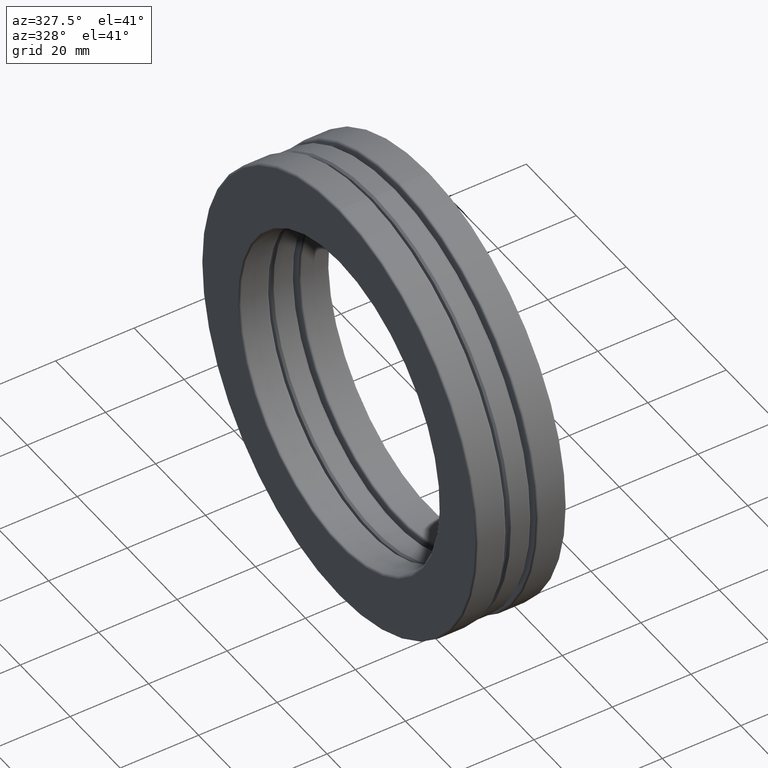
[diagram: clean part render]
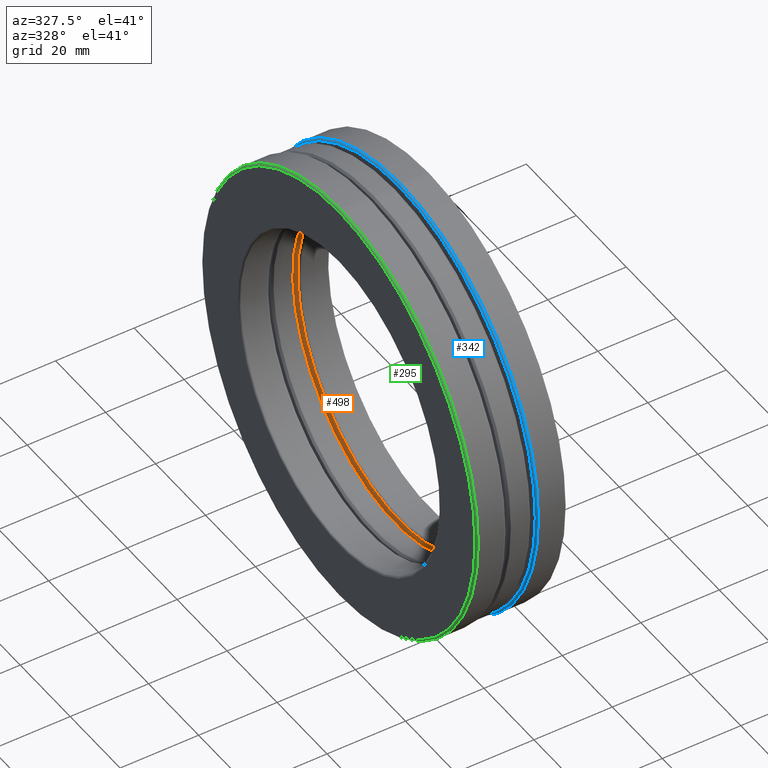
[diagram: same view with three faces highlighted in distinct colors, each labeled with its STEP entity id]
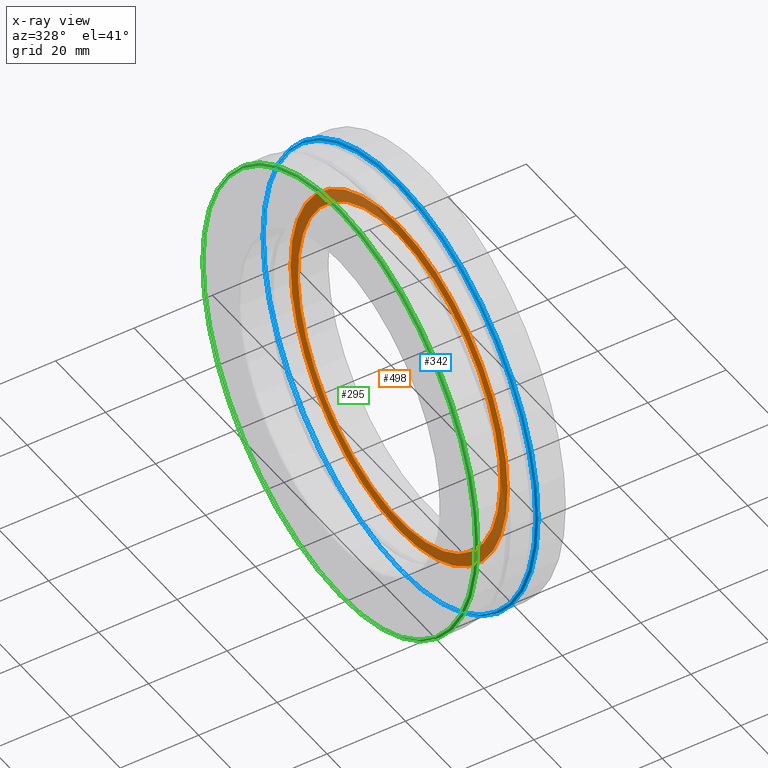
[diagram: x-ray of the same camera — body ghosted, the three highlighted faces saturated]
A machine part, auxiliary view with three faces highlighted in distinct colors.
The next image is the same camera in x-ray (body ghosted, the three faces saturated) — at least one of them is partly hidden behind the body in this view.
Their STEP definitions:

[orange] entity #498 — the highlighted planar face has unit normal (1, 0, 0).
#17 = DIRECTION ( 'NONE',  ( 0.0000000000000000000, 0.0000000000000000000, -1.000000000000000000 ) ) ;
#82 = ORIENTED_EDGE ( 'NONE', *, *, #577, .F. ) ;
#107 = VERTEX_POINT ( 'NONE', #364 ) ;
#271 = ORIENTED_EDGE ( 'NONE', *, *, #628, .T. ) ;
#337 = DIRECTION ( 'NONE',  ( -1.000000000000000000, -0.0000000000000000000, -0.0000000000000000000 ) ) ;
#364 = CARTESIAN_POINT ( 'NONE',  ( 0.1510030200000006500, 0.0000000000000000000, 1.711633834522204000 ) ) ;
#371 = VERTEX_POINT ( 'NONE', #540 ) ;
#401 = CARTESIAN_POINT ( 'NONE',  ( 0.1510030200000006500, 0.0000000000000000000, 0.0000000000000000000 ) ) ;
#473 = AXIS2_PLACEMENT_3D ( 'NONE', #401, #789, #17 ) ;
#478 = DIRECTION ( 'NONE',  ( 0.0000000000000000000, 0.0000000000000000000, 1.000000000000000000 ) ) ;
#498 = ADVANCED_FACE ( 'NONE', ( #816, #661 ), #724, .F. ) ;
#530 = DIRECTION ( 'NONE',  ( 0.0000000000000000000, 0.0000000000000000000, 1.000000000000000000 ) ) ;
#534 = AXIS2_PLACEMENT_3D ( 'NONE', #719, #337, #478 ) ;
#540 = CARTESIAN_POINT ( 'NONE',  ( 0.1510030200000006500, 0.0000000000000000000, 1.595000000000000000 ) ) ;
#577 = EDGE_CURVE ( 'NONE', #371, #371, #623, .T. ) ;
#623 = CIRCLE ( 'NONE', #534, 1.595000000000000000 ) ;
#627 = AXIS2_PLACEMENT_3D ( 'NONE', #738, #791, #530 ) ;
#628 = EDGE_CURVE ( 'NONE', #107, #107, #733, .T. ) ;
#661 = FACE_OUTER_BOUND ( 'NONE', #664, .T. ) ;
#664 = EDGE_LOOP ( 'NONE', ( #271 ) ) ;
#719 = CARTESIAN_POINT ( 'NONE',  ( 0.1510030200000006500, 0.0000000000000000000, 0.0000000000000000000 ) ) ;
#724 = PLANE ( 'NONE',  #473 ) ;
#733 = CIRCLE ( 'NONE', #627, 1.711633834522204000 ) ;
#736 = EDGE_LOOP ( 'NONE', ( #82 ) ) ;
#738 = CARTESIAN_POINT ( 'NONE',  ( 0.1510030200000006500, 0.0000000000000000000, 0.0000000000000000000 ) ) ;
#789 = DIRECTION ( 'NONE',  ( 1.000000000000000000, 0.0000000000000000000, 0.0000000000000000000 ) ) ;
#791 = DIRECTION ( 'NONE',  ( -1.000000000000000000, -0.0000000000000000000, -0.0000000000000000000 ) ) ;
#816 = FACE_BOUND ( 'NONE', #736, .T. ) ;

[blue] entity #342 — the highlighted toroidal blend (fillet) surface has major radius 54.4957 mm and minor (blend) radius 0.508 mm.
#13 = DIRECTION ( 'NONE',  ( -1.000000000000000000, -0.0000000000000000000, -0.0000000000000000000 ) ) ;
#58 = TOROIDAL_SURFACE ( 'NONE', #304, 2.145500000000000600, 0.02000000000000004200 ) ;
#71 = CARTESIAN_POINT ( 'NONE',  ( 0.1510030200000006500, 0.0000000000000000000, 0.0000000000000000000 ) ) ;
#160 = EDGE_CURVE ( 'NONE', #708, #708, #753, .T. ) ;
#217 = EDGE_LOOP ( 'NONE', ( #257 ) ) ;
#257 = ORIENTED_EDGE ( 'NONE', *, *, #160, .T. ) ;
#264 = DIRECTION ( 'NONE',  ( -1.000000000000000000, -0.0000000000000000000, -0.0000000000000000000 ) ) ;
#300 = FACE_OUTER_BOUND ( 'NONE', #391, .T. ) ;
#304 = AXIS2_PLACEMENT_3D ( 'NONE', #518, #264, #505 ) ;
#333 = DIRECTION ( 'NONE',  ( 0.0000000000000000000, 0.0000000000000000000, 1.000000000000000000 ) ) ;
#340 = CIRCLE ( 'NONE', #714, 2.145500000000000600 ) ;
#342 = ADVANCED_FACE ( 'NONE', ( #300, #482 ), #58, .T. ) ;
#361 = CARTESIAN_POINT ( 'NONE',  ( 0.1510030200000006500, 0.0000000000000000000, 2.145500000000000600 ) ) ;
#391 = EDGE_LOOP ( 'NONE', ( #748 ) ) ;
#399 = CARTESIAN_POINT ( 'NONE',  ( 0.1710030200000006700, 0.0000000000000000000, 2.165500000000000600 ) ) ;
#460 = DIRECTION ( 'NONE',  ( 0.0000000000000000000, 0.0000000000000000000, 1.000000000000000000 ) ) ;
#482 = FACE_OUTER_BOUND ( 'NONE', #217, .T. ) ;
#505 = DIRECTION ( 'NONE',  ( 0.0000000000000000000, 0.0000000000000000000, 1.000000000000000000 ) ) ;
#516 = DIRECTION ( 'NONE',  ( -1.000000000000000000, -0.0000000000000000000, -0.0000000000000000000 ) ) ;
#518 = CARTESIAN_POINT ( 'NONE',  ( 0.1710030200000006700, 0.0000000000000000000, 0.0000000000000000000 ) ) ;
#541 = VERTEX_POINT ( 'NONE', #361 ) ;
#587 = CARTESIAN_POINT ( 'NONE',  ( 0.1710030200000006700, 0.0000000000000000000, 0.0000000000000000000 ) ) ;
#705 = AXIS2_PLACEMENT_3D ( 'NONE', #587, #516, #333 ) ;
#708 = VERTEX_POINT ( 'NONE', #399 ) ;
#714 = AXIS2_PLACEMENT_3D ( 'NONE', #71, #13, #460 ) ;
#748 = ORIENTED_EDGE ( 'NONE', *, *, #802, .F. ) ;
#753 = CIRCLE ( 'NONE', #705, 2.165500000000000600 ) ;
#802 = EDGE_CURVE ( 'NONE', #541, #541, #340, .T. ) ;

[green] entity #295 — the highlighted toroidal blend (fillet) surface has major radius 54.4957 mm and minor (blend) radius 0.508 mm.
#22 = EDGE_LOOP ( 'NONE', ( #633 ) ) ;
#39 = DIRECTION ( 'NONE',  ( -1.000000000000000000, -0.0000000000000000000, -0.0000000000000000000 ) ) ;
#112 = CARTESIAN_POINT ( 'NONE',  ( -0.4529999999999999000, 0.0000000000000000000, 2.145500000000001100 ) ) ;
#117 = CARTESIAN_POINT ( 'NONE',  ( -0.4329999999999999400, 0.0000000000000000000, 2.165500000000000600 ) ) ;
#172 = FACE_OUTER_BOUND ( 'NONE', #22, .T. ) ;
#259 = DIRECTION ( 'NONE',  ( -1.000000000000000000, -0.0000000000000000000, -0.0000000000000000000 ) ) ;
#267 = CIRCLE ( 'NONE', #821, 2.165500000000000600 ) ;
#295 = ADVANCED_FACE ( 'NONE', ( #565, #172 ), #819, .T. ) ;
#328 = DIRECTION ( 'NONE',  ( 0.0000000000000000000, 0.0000000000000000000, 1.000000000000000000 ) ) ;
#418 = DIRECTION ( 'NONE',  ( 0.0000000000000000000, 0.0000000000000000000, 1.000000000000000000 ) ) ;
#492 = CARTESIAN_POINT ( 'NONE',  ( -0.4329999999999999400, 0.0000000000000000000, 0.0000000000000000000 ) ) ;
#544 = ORIENTED_EDGE ( 'NONE', *, *, #588, .F. ) ;
#565 = FACE_OUTER_BOUND ( 'NONE', #722, .T. ) ;
#575 = DIRECTION ( 'NONE',  ( -1.000000000000000000, -0.0000000000000000000, -0.0000000000000000000 ) ) ;
#582 = CIRCLE ( 'NONE', #815, 2.145500000000001100 ) ;
#588 = EDGE_CURVE ( 'NONE', #792, #792, #582, .T. ) ;
#602 = EDGE_CURVE ( 'NONE', #604, #604, #267, .T. ) ;
#604 = VERTEX_POINT ( 'NONE', #117 ) ;
#633 = ORIENTED_EDGE ( 'NONE', *, *, #602, .T. ) ;
#646 = DIRECTION ( 'NONE',  ( 0.0000000000000000000, 0.0000000000000000000, 1.000000000000000000 ) ) ;
#722 = EDGE_LOOP ( 'NONE', ( #544 ) ) ;
#726 = AXIS2_PLACEMENT_3D ( 'NONE', #778, #575, #328 ) ;
#778 = CARTESIAN_POINT ( 'NONE',  ( -0.4329999999999999400, 0.0000000000000000000, 0.0000000000000000000 ) ) ;
#792 = VERTEX_POINT ( 'NONE', #112 ) ;
#803 = CARTESIAN_POINT ( 'NONE',  ( -0.4529999999999999000, 0.0000000000000000000, 0.0000000000000000000 ) ) ;
#815 = AXIS2_PLACEMENT_3D ( 'NONE', #803, #39, #418 ) ;
#819 = TOROIDAL_SURFACE ( 'NONE', #726, 2.145500000000001100, 0.01999999999999988900 ) ;
#821 = AXIS2_PLACEMENT_3D ( 'NONE', #492, #259, #646 ) ;